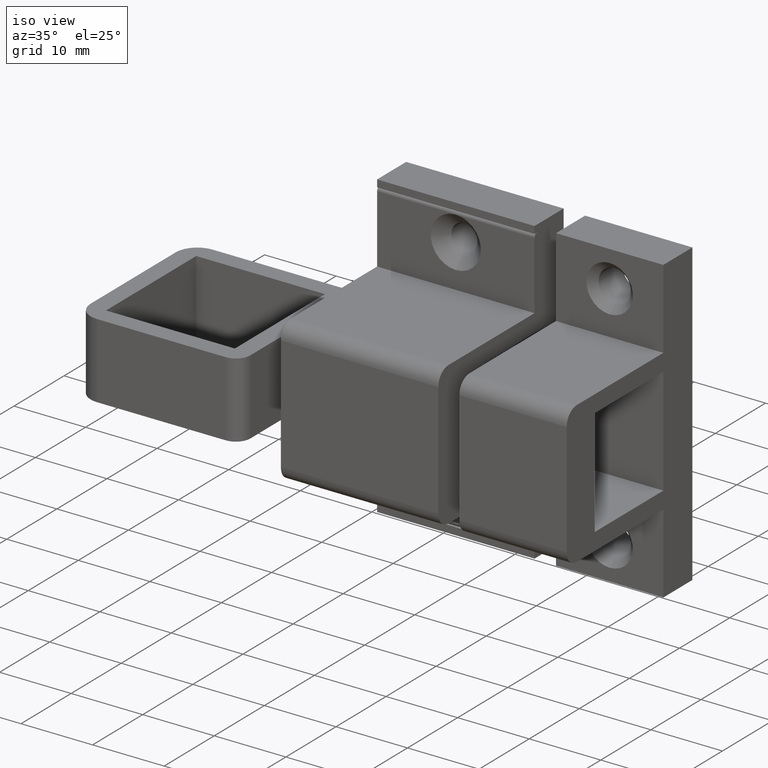
[diagram: clean part render]
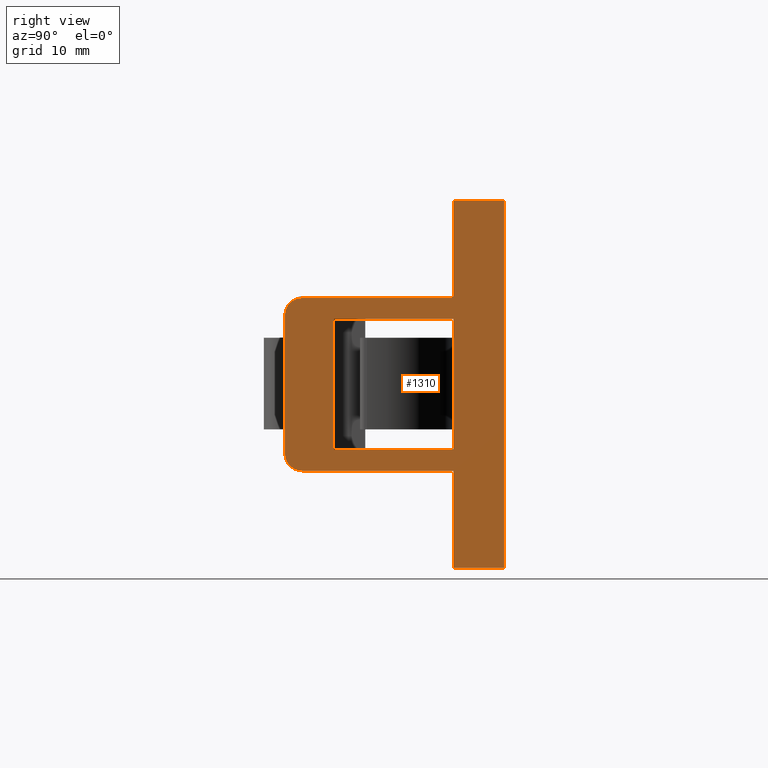
[diagram: tour spotlight — one face highlighted and labeled with its STEP entity id]
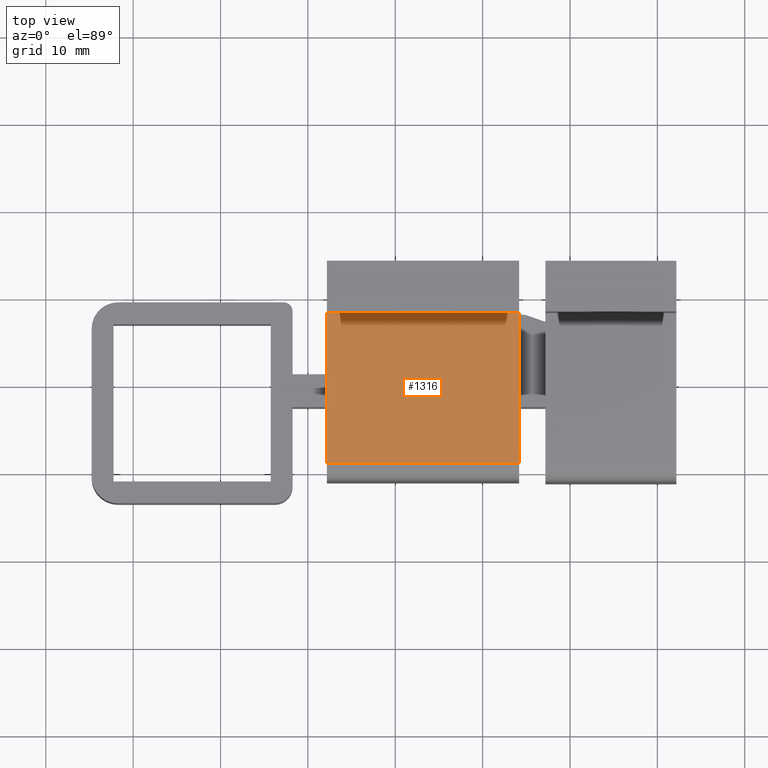
[diagram: tour spotlight — one face highlighted and labeled with its STEP entity id]
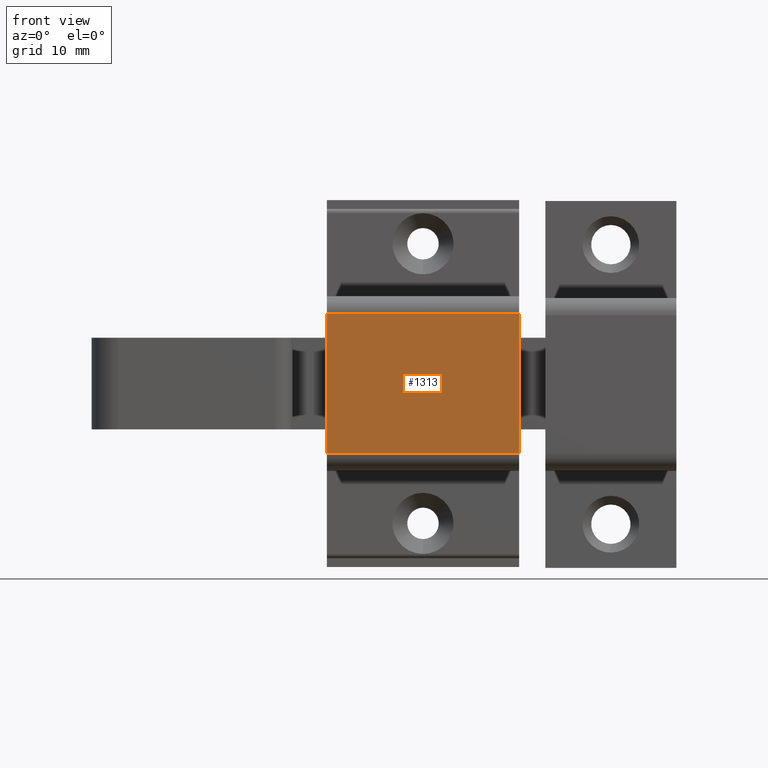
[diagram: tour spotlight — one face highlighted and labeled with its STEP entity id]
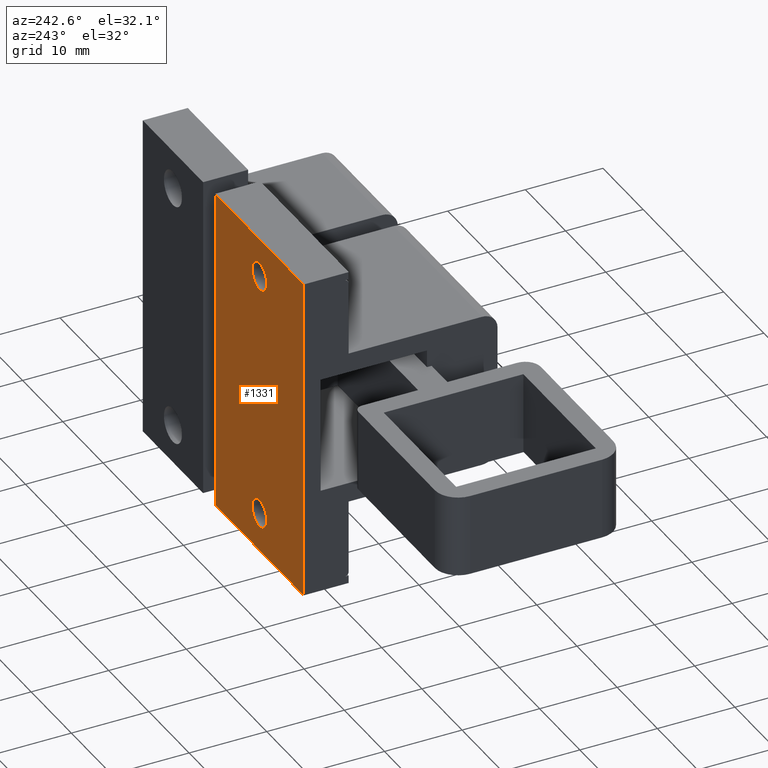
[diagram: tour spotlight — one face highlighted and labeled with its STEP entity id]
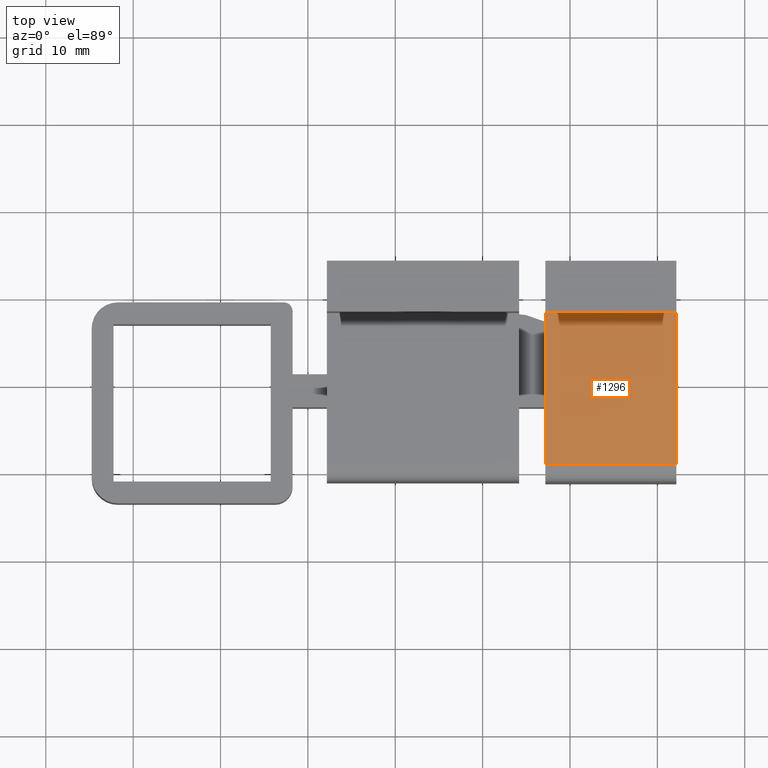
[diagram: tour spotlight — one face highlighted and labeled with its STEP entity id]
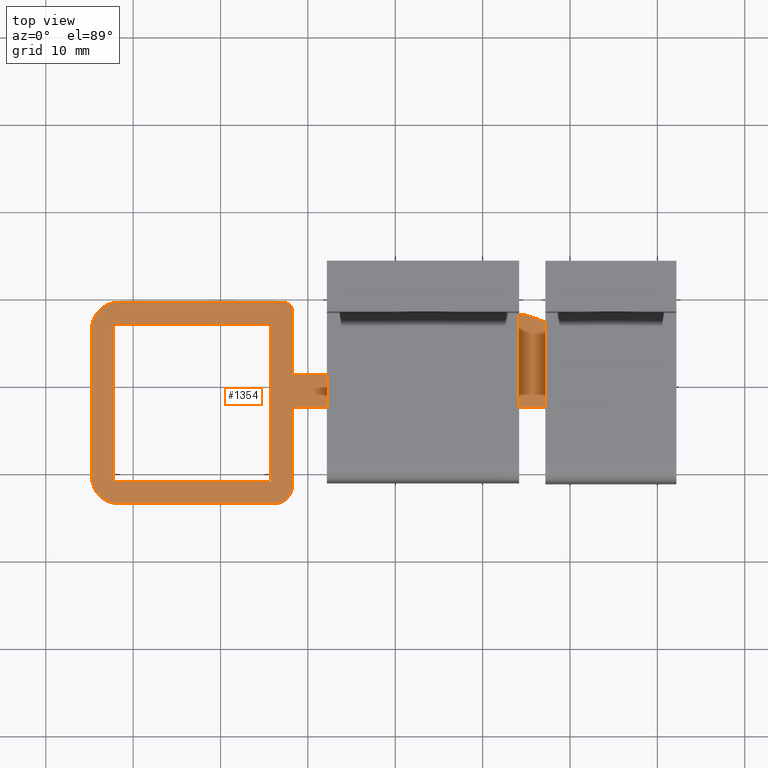
[diagram: tour spotlight — one face highlighted and labeled with its STEP entity id]
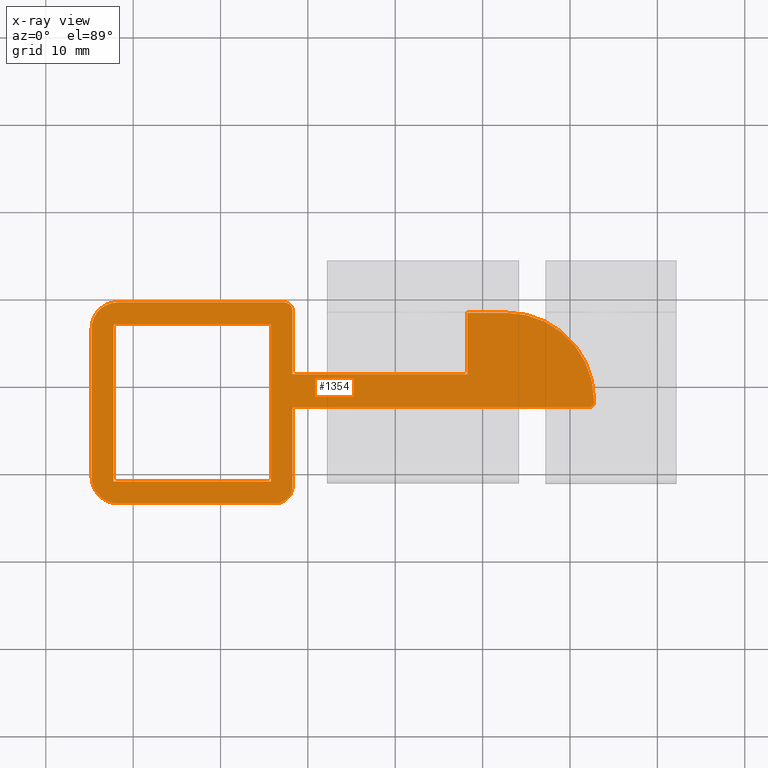
[diagram: x-ray of the same camera — body ghosted, this tour face saturated]
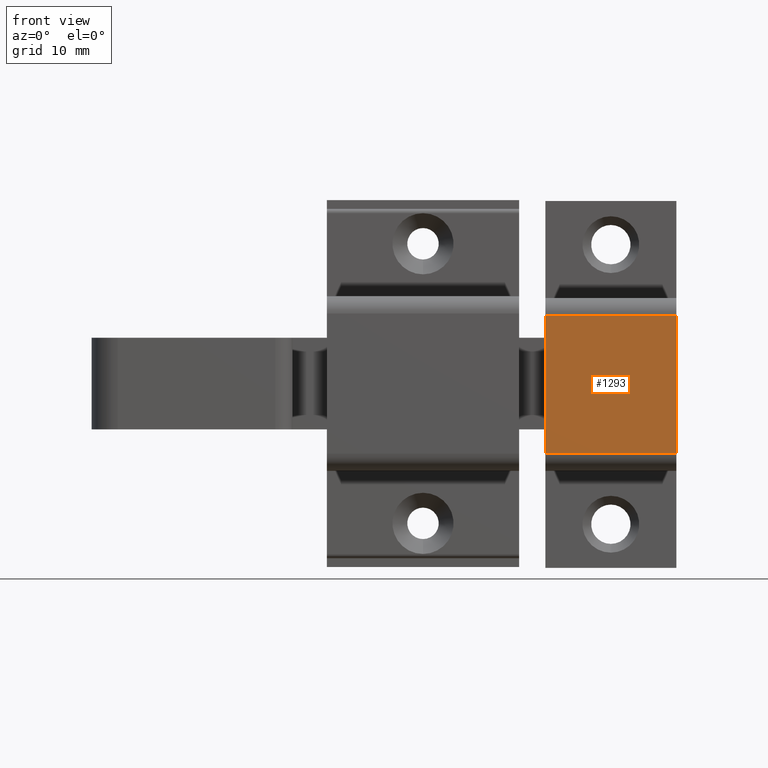
[diagram: tour spotlight — one face highlighted and labeled with its STEP entity id]
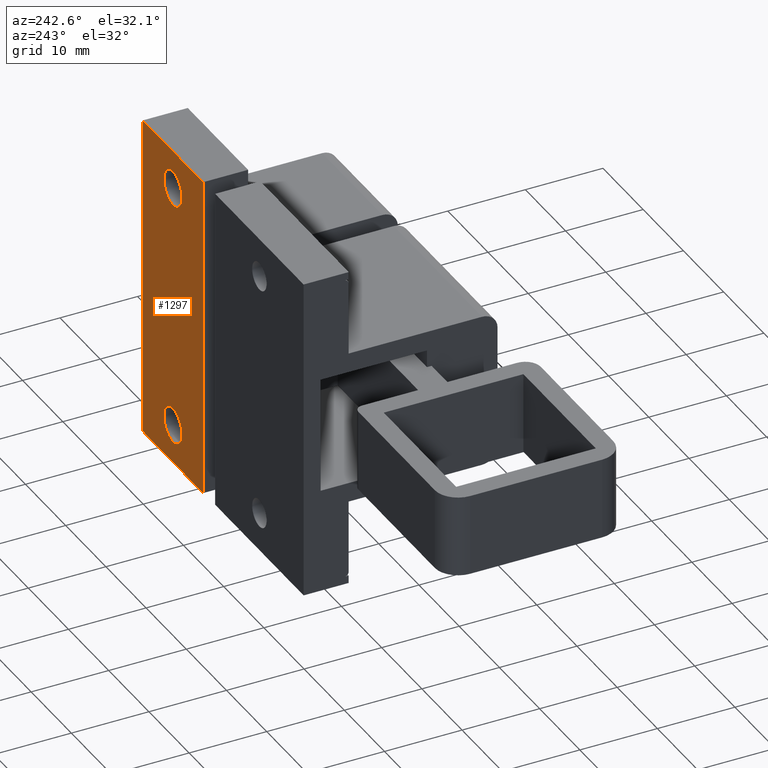
[diagram: tour spotlight — one face highlighted and labeled with its STEP entity id]
A machine part: a face-by-face anatomy tour. The part has 68 B-rep faces; the first image is the clean iso view, then the 8 largest visible faces are spotlighted one at a time (largest first), each with its STEP entity span.

Face 1 — right view, entity #1310. In plain terms, the highlighted planar face has unit normal (1, 0, 0).
Definition (entity closure, byte-faithful):
#44=FACE_BOUND('',#191,.T.);
#63=PLANE('',#1464);
#117=FACE_OUTER_BOUND('',#190,.T.);
#190=EDGE_LOOP('',(#992,#993,#994,#995,#996,#997,#998,#999,#1000,#1001));
#191=EDGE_LOOP('',(#1002,#1003,#1004,#1005));
#251=LINE('',#1942,#399);
#264=LINE('',#1973,#412);
#266=LINE('',#1978,#414);
#274=LINE('',#2012,#422);
#276=LINE('',#2016,#424);
#277=LINE('',#2018,#425);
#278=LINE('',#2021,#426);
#281=LINE('',#2027,#429);
#284=LINE('',#2032,#432);
#286=LINE('',#2036,#434);
#287=LINE('',#2038,#435);
#288=LINE('',#2040,#436);
#399=VECTOR('',#1562,10.);
#412=VECTOR('',#1585,15.3);
#414=VECTOR('',#1589,10.);
#422=VECTOR('',#1627,10.);
#424=VECTOR('',#1631,10.);
#425=VECTOR('',#1634,10.);
#426=VECTOR('',#1637,10.1);
#429=VECTOR('',#1642,13.7);
#432=VECTOR('',#1647,15.);
#434=VECTOR('',#1651,13.7);
#435=VECTOR('',#1654,15.);
#436=VECTOR('',#1657,15.3);
#544=CIRCLE('',#1434,2.);
#546=CIRCLE('',#1439,2.);
#586=VERTEX_POINT('',#1932);
#587=VERTEX_POINT('',#1934);
#589=VERTEX_POINT('',#1940);
#601=VERTEX_POINT('',#1968);
#602=VERTEX_POINT('',#1972);
#603=VERTEX_POINT('',#1976);
#604=VERTEX_POINT('',#1977);
#615=VERTEX_POINT('',#2010);
#616=VERTEX_POINT('',#2014);
#617=VERTEX_POINT('',#2020);
#618=VERTEX_POINT('',#2024);
#619=VERTEX_POINT('',#2026);
#620=VERTEX_POINT('',#2030);
#621=VERTEX_POINT('',#2034);
#711=EDGE_CURVE('',#586,#587,#544,.T.);
#715=EDGE_CURVE('',#586,#589,#251,.F.);
#729=EDGE_CURVE('',#601,#589,#546,.T.);
#730=EDGE_CURVE('',#602,#587,#264,.T.);
#732=EDGE_CURVE('',#603,#604,#266,.T.);
#750=EDGE_CURVE('',#615,#604,#274,.T.);
#752=EDGE_CURVE('',#616,#603,#276,.T.);
#753=EDGE_CURVE('',#602,#616,#277,.T.);
#754=EDGE_CURVE('',#617,#615,#278,.T.);
#757=EDGE_CURVE('',#619,#618,#281,.T.);
#760=EDGE_CURVE('',#618,#620,#284,.T.);
#762=EDGE_CURVE('',#620,#621,#286,.T.);
#763=EDGE_CURVE('',#621,#619,#287,.T.);
#764=EDGE_CURVE('',#601,#617,#288,.T.);
#992=ORIENTED_EDGE('',*,*,#711,.F.);
#993=ORIENTED_EDGE('',*,*,#715,.T.);
#994=ORIENTED_EDGE('',*,*,#729,.F.);
#995=ORIENTED_EDGE('',*,*,#764,.T.);
#996=ORIENTED_EDGE('',*,*,#754,.T.);
#997=ORIENTED_EDGE('',*,*,#750,.T.);
#998=ORIENTED_EDGE('',*,*,#732,.F.);
#999=ORIENTED_EDGE('',*,*,#752,.F.);
#1000=ORIENTED_EDGE('',*,*,#753,.F.);
#1001=ORIENTED_EDGE('',*,*,#730,.T.);
#1002=ORIENTED_EDGE('',*,*,#757,.T.);
#1003=ORIENTED_EDGE('',*,*,#760,.T.);
#1004=ORIENTED_EDGE('',*,*,#762,.T.);
#1005=ORIENTED_EDGE('',*,*,#763,.T.);
#1310=ADVANCED_FACE('',(#117,#44),#63,.T.);
#1434=AXIS2_PLACEMENT_3D('',#1935,#1555,#1556);
#1439=AXIS2_PLACEMENT_3D('',#1970,#1581,#1582);
#1464=AXIS2_PLACEMENT_3D('',#2039,#1655,#1656);
#1555=DIRECTION('center_axis',(0.,1.,0.));
#1556=DIRECTION('ref_axis',(0.707106781186548,0.,0.707106781186547));
#1562=DIRECTION('',(1.,0.,0.));
#1581=DIRECTION('center_axis',(0.,1.,0.));
#1582=DIRECTION('ref_axis',(-0.707106781186548,0.,0.707106781186547));
#1585=DIRECTION('',(0.,0.,1.));
#1589=DIRECTION('',(-1.,0.,0.));
#1627=DIRECTION('',(0.,0.,-1.));
#1631=DIRECTION('',(0.,-4.03717463500062E-15,-1.));
#1634=DIRECTION('',(1.,0.,0.));
#1637=DIRECTION('',(-1.,0.,0.));
#1642=DIRECTION('',(0.,0.,-1.));
#1647=DIRECTION('',(-1.,0.,0.));
#1651=DIRECTION('',(0.,0.,1.));
#1654=DIRECTION('',(1.,0.,0.));
#1655=DIRECTION('center_axis',(0.,-1.,0.));
#1656=DIRECTION('ref_axis',(1.,0.,0.));
#1657=DIRECTION('',(0.,0.,-1.));
#1932=CARTESIAN_POINT('',(7.89999999999998,-10.5,21.5));
#1934=CARTESIAN_POINT('',(9.89999999999998,-10.5,19.5));
#1935=CARTESIAN_POINT('Origin',(7.89999999999998,-10.5,19.5));
#1940=CARTESIAN_POINT('',(-7.90000000000002,-10.5,21.5));
#1942=CARTESIAN_POINT('',(-7.05000095780639,-10.5,21.5));
#1968=CARTESIAN_POINT('',(-9.90000000000002,-10.5,19.5));
#1970=CARTESIAN_POINT('Origin',(-7.90000000000002,-10.5,19.5));
#1972=CARTESIAN_POINT('',(9.89999999999998,-10.5,2.19999999999997));
#1973=CARTESIAN_POINT('',(9.89999999999998,-10.5,2.19999999999997));
#1976=CARTESIAN_POINT('',(21.,-10.5,-3.6));
#1977=CARTESIAN_POINT('',(-21.,-10.5,-3.6));
#1978=CARTESIAN_POINT('',(21.,-10.5,-3.6));
#2010=CARTESIAN_POINT('',(-21.,-10.5,2.19999999999997));
#2012=CARTESIAN_POINT('',(-21.,-10.5,-3.552714E-15));
#2014=CARTESIAN_POINT('',(21.,-10.5,2.19999999999997));
#2016=CARTESIAN_POINT('',(21.,-10.5,2.19999999999997));
#2018=CARTESIAN_POINT('',(20.,-10.5,2.19999999999997));
#2020=CARTESIAN_POINT('',(-9.90000000000001,-10.5,2.19999999999997));
#2021=CARTESIAN_POINT('',(-9.90000000000001,-10.5,2.19999999999997));
#2024=CARTESIAN_POINT('',(7.49999999999996,-10.5,2.19999999999997));
#2026=CARTESIAN_POINT('',(7.49999999999997,-10.5,15.9));
#2027=CARTESIAN_POINT('',(7.49999999999997,-10.5,15.9));
#2030=CARTESIAN_POINT('',(-7.50000000000001,-10.5,2.19999999999997));
#2032=CARTESIAN_POINT('',(7.49999999999996,-10.5,2.19999999999997));
#2034=CARTESIAN_POINT('',(-7.50000000000001,-10.5,15.9));
#2036=CARTESIAN_POINT('',(-7.50000000000001,-10.5,2.19999999999997));
#2038=CARTESIAN_POINT('',(-7.50000000000001,-10.5,15.9));
#2039=CARTESIAN_POINT('Origin',(-24.0000019156128,-10.5,-1.95000184695482));
#2040=CARTESIAN_POINT('',(-9.90000000000002,-10.5,17.5));

Face 2 — top view, entity #1316. In plain terms, the highlighted planar face has unit normal (-0, -0, 1).
Definition (entity closure, byte-faithful):
#67=PLANE('',#1477);
#123=FACE_OUTER_BOUND('',#198,.T.);
#198=EDGE_LOOP('',(#1042,#1043,#1044,#1045));
#304=LINE('',#2084,#452);
#309=LINE('',#2097,#457);
#310=LINE('',#2100,#458);
#311=LINE('',#2101,#459);
#452=VECTOR('',#1691,11.7);
#457=VECTOR('',#1702,10.);
#458=VECTOR('',#1705,22.);
#459=VECTOR('',#1706,11.7);
#639=VERTEX_POINT('',#2081);
#640=VERTEX_POINT('',#2083);
#645=VERTEX_POINT('',#2095);
#646=VERTEX_POINT('',#2099);
#784=EDGE_CURVE('',#640,#639,#304,.T.);
#791=EDGE_CURVE('',#640,#645,#309,.T.);
#792=EDGE_CURVE('',#639,#646,#310,.T.);
#793=EDGE_CURVE('',#645,#646,#311,.T.);
#1042=ORIENTED_EDGE('',*,*,#791,.F.);
#1043=ORIENTED_EDGE('',*,*,#784,.T.);
#1044=ORIENTED_EDGE('',*,*,#792,.T.);
#1045=ORIENTED_EDGE('',*,*,#793,.F.);
#1316=ADVANCED_FACE('',(#123),#67,.T.);
#1477=AXIS2_PLACEMENT_3D('',#2098,#1703,#1704);
#1691=DIRECTION('',(0.,0.,-1.));
#1702=DIRECTION('',(0.,1.,0.));
#1703=DIRECTION('center_axis',(1.,0.,0.));
#1704=DIRECTION('ref_axis',(0.,0.,-1.));
#1705=DIRECTION('',(0.,1.,0.));
#1706=DIRECTION('',(0.,0.,-1.));
#2081=CARTESIAN_POINT('',(10.,0.,5.8));
#2083=CARTESIAN_POINT('',(10.,-3.675178E-15,23.));
#2084=CARTESIAN_POINT('',(10.,-3.675178E-15,17.5));
#2095=CARTESIAN_POINT('',(10.,22.,23.));
#2097=CARTESIAN_POINT('',(10.,-3.552714E-15,23.));
#2098=CARTESIAN_POINT('Origin',(10.,-3.552714E-15,19.5));
#2099=CARTESIAN_POINT('',(10.,22.,5.8));
#2100=CARTESIAN_POINT('',(10.,0.,5.8));
#2101=CARTESIAN_POINT('',(10.,22.,17.5));

Face 3 — front view, entity #1313. In plain terms, the highlighted planar face has unit normal (0, -1, -0).
Definition (entity closure, byte-faithful):
#65=PLANE('',#1470);
#120=FACE_OUTER_BOUND('',#194,.T.);
#194=EDGE_LOOP('',(#1014,#1015,#1016,#1017));
#289=LINE('',#2048,#437);
#291=LINE('',#2054,#439);
#292=LINE('',#2056,#440);
#293=LINE('',#2057,#441);
#437=VECTOR('',#1666,10.);
#439=VECTOR('',#1672,16.);
#440=VECTOR('',#1673,10.);
#441=VECTOR('',#1674,16.);
#623=VERTEX_POINT('',#2045);
#624=VERTEX_POINT('',#2047);
#626=VERTEX_POINT('',#2053);
#627=VERTEX_POINT('',#2055);
#766=EDGE_CURVE('',#623,#624,#289,.T.);
#769=EDGE_CURVE('',#623,#626,#291,.T.);
#770=EDGE_CURVE('',#627,#626,#292,.T.);
#771=EDGE_CURVE('',#624,#627,#293,.T.);
#1014=ORIENTED_EDGE('',*,*,#766,.F.);
#1015=ORIENTED_EDGE('',*,*,#769,.T.);
#1016=ORIENTED_EDGE('',*,*,#770,.F.);
#1017=ORIENTED_EDGE('',*,*,#771,.F.);
#1313=ADVANCED_FACE('',(#120),#65,.T.);
#1470=AXIS2_PLACEMENT_3D('',#2052,#1670,#1671);
#1666=DIRECTION('',(0.,1.,0.));
#1670=DIRECTION('center_axis',(0.,0.,1.));
#1671=DIRECTION('ref_axis',(1.,0.,0.));
#1672=DIRECTION('',(1.,0.,0.));
#1673=DIRECTION('',(0.,-1.,0.));
#1674=DIRECTION('',(1.,0.,0.));
#2045=CARTESIAN_POINT('',(-8.,-3.552714E-15,25.));
#2047=CARTESIAN_POINT('',(-8.,22.,25.));
#2048=CARTESIAN_POINT('',(-8.,-1.776357E-15,25.));
#2052=CARTESIAN_POINT('Origin',(-10.,-3.552714E-15,25.));
#2053=CARTESIAN_POINT('',(8.,-3.552714E-15,25.));
#2054=CARTESIAN_POINT('',(-8.,-3.552714E-15,25.));
#2055=CARTESIAN_POINT('',(8.,22.,25.));
#2056=CARTESIAN_POINT('',(8.,-3.552714E-15,25.));
#2057=CARTESIAN_POINT('',(-8.,22.,25.));

Face 4 — auxiliary view, entity #1331. In plain terms, the highlighted planar face has unit normal (-0, 1, 0).
Definition (entity closure, byte-faithful):
#47=FACE_BOUND('',#215,.T.);
#48=FACE_BOUND('',#216,.T.);
#78=PLANE('',#1501);
#138=FACE_OUTER_BOUND('',#214,.T.);
#214=EDGE_LOOP('',(#1124,#1125,#1126,#1127));
#215=EDGE_LOOP('',(#1128));
#216=EDGE_LOOP('',(#1129));
#299=LINE('',#2072,#447);
#318=LINE('',#2118,#466);
#329=LINE('',#2140,#477);
#333=LINE('',#2147,#481);
#447=VECTOR('',#1684,40.);
#466=VECTOR('',#1719,40.);
#477=VECTOR('',#1736,10.);
#481=VECTOR('',#1746,10.);
#568=CIRCLE('',#1494,1.8);
#571=CIRCLE('',#1500,1.8);
#633=VERTEX_POINT('',#2069);
#634=VERTEX_POINT('',#2071);
#652=VERTEX_POINT('',#2115);
#653=VERTEX_POINT('',#2117);
#665=VERTEX_POINT('',#2162);
#668=VERTEX_POINT('',#2175);
#778=EDGE_CURVE('',#634,#633,#299,.T.);
#801=EDGE_CURVE('',#652,#653,#318,.T.);
#813=EDGE_CURVE('',#653,#633,#329,.T.);
#817=EDGE_CURVE('',#634,#652,#333,.T.);
#825=EDGE_CURVE('',#665,#665,#568,.T.);
#832=EDGE_CURVE('',#668,#668,#571,.T.);
#1124=ORIENTED_EDGE('',*,*,#778,.T.);
#1125=ORIENTED_EDGE('',*,*,#813,.F.);
#1126=ORIENTED_EDGE('',*,*,#801,.F.);
#1127=ORIENTED_EDGE('',*,*,#817,.F.);
#1128=ORIENTED_EDGE('',*,*,#832,.T.);
#1129=ORIENTED_EDGE('',*,*,#825,.T.);
#1331=ADVANCED_FACE('',(#138,#47,#48),#78,.T.);
#1494=AXIS2_PLACEMENT_3D('',#2163,#1765,#1766);
#1500=AXIS2_PLACEMENT_3D('',#2176,#1781,#1782);
#1501=AXIS2_PLACEMENT_3D('',#2178,#1784,#1785);
#1684=DIRECTION('',(-1.,0.,0.));
#1719=DIRECTION('',(-1.,0.,0.));
#1736=DIRECTION('',(0.,-1.,0.));
#1746=DIRECTION('',(0.,1.,0.));
#1765=DIRECTION('center_axis',(0.,0.,1.));
#1766=DIRECTION('ref_axis',(1.,0.,0.));
#1781=DIRECTION('center_axis',(0.,0.,1.));
#1782=DIRECTION('ref_axis',(1.,0.,0.));
#1784=DIRECTION('center_axis',(0.,0.,-1.));
#1785=DIRECTION('ref_axis',(-1.,0.,0.));
#2069=CARTESIAN_POINT('',(-21.,3.552714E-15,-3.33066907387547E-15));
#2071=CARTESIAN_POINT('',(21.,0.,3.552714E-15));
#2072=CARTESIAN_POINT('',(20.,0.,3.552714E-15));
#2115=CARTESIAN_POINT('',(21.,22.,3.552714E-15));
#2117=CARTESIAN_POINT('',(-21.,22.,-3.33066907387547E-15));
#2118=CARTESIAN_POINT('',(20.,22.,3.552714E-15));
#2140=CARTESIAN_POINT('',(-21.,22.,-3.33066907387547E-15));
#2147=CARTESIAN_POINT('',(21.,0.,3.552714E-15));
#2162=CARTESIAN_POINT('',(14.2,11.,3.33066907387547E-15));
#2163=CARTESIAN_POINT('Origin',(16.,11.,3.33066907387547E-15));
#2175=CARTESIAN_POINT('',(-17.8,11.,3.33066907387547E-15));
#2176=CARTESIAN_POINT('Origin',(-16.,11.,3.33066907387547E-15));
#2178=CARTESIAN_POINT('Origin',(20.,0.,3.552714E-15));

Face 5 — top view, entity #1296. In plain terms, the highlighted planar face has unit normal (-0, -0, 1).
Definition (entity closure, byte-faithful):
#53=PLANE('',#1440);
#103=FACE_OUTER_BOUND('',#172,.T.);
#172=EDGE_LOOP('',(#924,#925,#926,#927));
#248=LINE('',#1936,#396);
#252=LINE('',#1945,#400);
#264=LINE('',#1973,#412);
#265=LINE('',#1974,#413);
#396=VECTOR('',#1557,10.);
#400=VECTOR('',#1565,10.);
#412=VECTOR('',#1585,15.3);
#413=VECTOR('',#1586,9.99999999999999);
#584=VERTEX_POINT('',#1929);
#587=VERTEX_POINT('',#1934);
#590=VERTEX_POINT('',#1944);
#602=VERTEX_POINT('',#1972);
#712=EDGE_CURVE('',#587,#584,#248,.T.);
#716=EDGE_CURVE('',#584,#590,#252,.T.);
#730=EDGE_CURVE('',#602,#587,#264,.T.);
#731=EDGE_CURVE('',#590,#602,#265,.T.);
#924=ORIENTED_EDGE('',*,*,#712,.F.);
#925=ORIENTED_EDGE('',*,*,#730,.F.);
#926=ORIENTED_EDGE('',*,*,#731,.F.);
#927=ORIENTED_EDGE('',*,*,#716,.F.);
#1296=ADVANCED_FACE('',(#103),#53,.T.);
#1440=AXIS2_PLACEMENT_3D('',#1971,#1583,#1584);
#1557=DIRECTION('',(0.,1.,0.));
#1565=DIRECTION('',(-1.12618685522917E-16,0.,-1.));
#1583=DIRECTION('center_axis',(1.,0.,0.));
#1584=DIRECTION('ref_axis',(0.,0.,1.));
#1585=DIRECTION('',(0.,0.,1.));
#1586=DIRECTION('',(0.,-1.,0.));
#1929=CARTESIAN_POINT('',(9.89999999999998,4.5,19.5));
#1934=CARTESIAN_POINT('',(9.89999999999998,-10.5,19.5));
#1936=CARTESIAN_POINT('',(9.89999999999998,-0.500000000000006,19.5));
#1944=CARTESIAN_POINT('',(9.89999999999998,4.5,2.19999999999998));
#1945=CARTESIAN_POINT('',(9.89999999999998,4.5,17.5));
#1971=CARTESIAN_POINT('Origin',(9.89999999999998,-0.500000000000004,2.19999999999998));
#1972=CARTESIAN_POINT('',(9.89999999999998,-10.5,2.19999999999997));
#1973=CARTESIAN_POINT('',(9.89999999999998,-10.5,2.19999999999997));
#1974=CARTESIAN_POINT('',(9.89999999999998,-0.500000000000004,2.19999999999998));

Face 6 — top view, entity #1354. An x-ray twin of the same camera follows (body ghosted, this face saturated) — the face is partly hidden behind the body. In plain terms, the highlighted planar face has unit normal (-0, -0, 1).
Definition (entity closure, byte-faithful):
#50=FACE_BOUND('',#241,.T.);
#93=PLANE('',#1537);
#161=FACE_OUTER_BOUND('',#240,.T.);
#240=EDGE_LOOP('',(#1236,#1237,#1238,#1239,#1240,#1241,#1242,#1243,#1244,
#1245,#1246,#1247,#1248,#1249,#1250,#1251));
#241=EDGE_LOOP('',(#1252,#1253,#1254,#1255));
#349=LINE('',#2197,#497);
#353=LINE('',#2204,#501);
#356=LINE('',#2210,#504);
#358=LINE('',#2213,#506);
#365=LINE('',#2242,#513);
#367=LINE('',#2245,#515);
#371=LINE('',#2257,#519);
#375=LINE('',#2264,#523);
#380=LINE('',#2279,#528);
#388=LINE('',#2298,#536);
#389=LINE('',#2299,#537);
#390=LINE('',#2301,#538);
#391=LINE('',#2303,#539);
#392=LINE('',#2304,#540);
#497=VECTOR('',#1808,18.);
#501=VECTOR('',#1814,18.);
#504=VECTOR('',#1819,18.);
#506=VECTOR('',#1823,18.);
#513=VECTOR('',#1850,17.);
#515=VECTOR('',#1854,18.);
#519=VECTOR('',#1866,19.);
#523=VECTOR('',#1872,9.);
#528=VECTOR('',#1885,4.49999999999999);
#536=VECTOR('',#1903,34.);
#537=VECTOR('',#1904,0.299999999999997);
#538=VECTOR('',#1905,7.02929062203731);
#539=VECTOR('',#1906,20.);
#540=VECTOR('',#1907,7.2292906220373);
#572=CIRCLE('',#1514,2.);
#574=CIRCLE('',#1517,3.);
#577=CIRCLE('',#1521,3.);
#578=CIRCLE('',#1525,1.);
#581=CIRCLE('',#1531,10.);
#583=CIRCLE('',#1536,0.5);
#671=VERTEX_POINT('',#2194);
#672=VERTEX_POINT('',#2196);
#674=VERTEX_POINT('',#2202);
#676=VERTEX_POINT('',#2208);
#678=VERTEX_POINT('',#2216);
#679=VERTEX_POINT('',#2218);
#682=VERTEX_POINT('',#2225);
#683=VERTEX_POINT('',#2227);
#687=VERTEX_POINT('',#2236);
#688=VERTEX_POINT('',#2238);
#690=VERTEX_POINT('',#2249);
#691=VERTEX_POINT('',#2251);
#694=VERTEX_POINT('',#2262);
#697=VERTEX_POINT('',#2269);
#698=VERTEX_POINT('',#2271);
#700=VERTEX_POINT('',#2277);
#705=VERTEX_POINT('',#2292);
#706=VERTEX_POINT('',#2294);
#707=VERTEX_POINT('',#2300);
#708=VERTEX_POINT('',#2302);
#840=EDGE_CURVE('',#672,#671,#349,.T.);
#844=EDGE_CURVE('',#671,#674,#353,.T.);
#847=EDGE_CURVE('',#674,#676,#356,.T.);
#849=EDGE_CURVE('',#676,#672,#358,.T.);
#851=EDGE_CURVE('',#678,#679,#572,.T.);
#855=EDGE_CURVE('',#682,#683,#574,.T.);
#860=EDGE_CURVE('',#688,#687,#577,.T.);
#862=EDGE_CURVE('',#682,#688,#365,.T.);
#864=EDGE_CURVE('',#687,#679,#367,.T.);
#867=EDGE_CURVE('',#691,#690,#578,.T.);
#870=EDGE_CURVE('',#690,#683,#371,.T.);
#874=EDGE_CURVE('',#678,#694,#375,.T.);
#877=EDGE_CURVE('',#698,#697,#581,.T.);
#881=EDGE_CURVE('',#700,#697,#380,.T.);
#890=EDGE_CURVE('',#705,#706,#583,.T.);
#891=EDGE_CURVE('',#694,#705,#388,.T.);
#892=EDGE_CURVE('',#698,#706,#389,.T.);
#893=EDGE_CURVE('',#707,#700,#390,.T.);
#894=EDGE_CURVE('',#708,#707,#391,.T.);
#895=EDGE_CURVE('',#708,#691,#392,.T.);
#1236=ORIENTED_EDGE('',*,*,#862,.T.);
#1237=ORIENTED_EDGE('',*,*,#860,.T.);
#1238=ORIENTED_EDGE('',*,*,#864,.T.);
#1239=ORIENTED_EDGE('',*,*,#851,.F.);
#1240=ORIENTED_EDGE('',*,*,#874,.T.);
#1241=ORIENTED_EDGE('',*,*,#891,.T.);
#1242=ORIENTED_EDGE('',*,*,#890,.T.);
#1243=ORIENTED_EDGE('',*,*,#892,.F.);
#1244=ORIENTED_EDGE('',*,*,#877,.T.);
#1245=ORIENTED_EDGE('',*,*,#881,.F.);
#1246=ORIENTED_EDGE('',*,*,#893,.F.);
#1247=ORIENTED_EDGE('',*,*,#894,.F.);
#1248=ORIENTED_EDGE('',*,*,#895,.T.);
#1249=ORIENTED_EDGE('',*,*,#867,.T.);
#1250=ORIENTED_EDGE('',*,*,#870,.T.);
#1251=ORIENTED_EDGE('',*,*,#855,.F.);
#1252=ORIENTED_EDGE('',*,*,#840,.T.);
#1253=ORIENTED_EDGE('',*,*,#844,.T.);
#1254=ORIENTED_EDGE('',*,*,#847,.T.);
#1255=ORIENTED_EDGE('',*,*,#849,.T.);
#1354=ADVANCED_FACE('',(#161,#50),#93,.T.);
#1514=AXIS2_PLACEMENT_3D('',#2219,#1827,#1828);
#1517=AXIS2_PLACEMENT_3D('',#2228,#1835,#1836);
#1521=AXIS2_PLACEMENT_3D('',#2239,#1845,#1846);
#1525=AXIS2_PLACEMENT_3D('',#2252,#1859,#1860);
#1531=AXIS2_PLACEMENT_3D('',#2272,#1878,#1879);
#1536=AXIS2_PLACEMENT_3D('',#2296,#1899,#1900);
#1537=AXIS2_PLACEMENT_3D('',#2297,#1901,#1902);
#1808=DIRECTION('',(0.,0.,-1.));
#1814=DIRECTION('',(0.,-1.,0.));
#1819=DIRECTION('',(0.,0.,1.));
#1823=DIRECTION('',(0.,1.,0.));
#1827=DIRECTION('center_axis',(-1.,0.,0.));
#1828=DIRECTION('ref_axis',(0.,-1.,0.));
#1835=DIRECTION('center_axis',(-1.,0.,0.));
#1836=DIRECTION('ref_axis',(0.,1.,0.));
#1845=DIRECTION('center_axis',(1.,0.,0.));
#1846=DIRECTION('ref_axis',(0.,1.,0.));
#1850=DIRECTION('',(0.,0.,1.));
#1854=DIRECTION('',(0.,-1.,0.));
#1859=DIRECTION('center_axis',(1.,0.,0.));
#1860=DIRECTION('ref_axis',(0.,-1.,0.));
#1866=DIRECTION('',(0.,1.,0.));
#1872=DIRECTION('',(0.,0.,-1.));
#1878=DIRECTION('center_axis',(1.,0.,0.));
#1879=DIRECTION('ref_axis',(0.,-1.,-7.105427E-16));
#1885=DIRECTION('',(0.,-1.,0.));
#1899=DIRECTION('center_axis',(1.,0.,0.));
#1900=DIRECTION('ref_axis',(0.,0.,1.));
#1901=DIRECTION('center_axis',(1.,0.,0.));
#1902=DIRECTION('ref_axis',(0.,1.,0.));
#1903=DIRECTION('',(0.,-1.,0.));
#1904=DIRECTION('',(0.,0.,1.));
#1905=DIRECTION('',(0.,0.,-1.));
#1906=DIRECTION('',(0.,-1.,0.));
#1907=DIRECTION('',(0.,0.,-1.));
#2194=CARTESIAN_POINT('',(5.25,43.,3.50000000000001));
#2196=CARTESIAN_POINT('',(5.25,43.,21.5));
#2197=CARTESIAN_POINT('',(5.25,43.,21.5));
#2202=CARTESIAN_POINT('',(5.25,25.,3.5));
#2204=CARTESIAN_POINT('',(5.25,43.,3.50000000000001));
#2208=CARTESIAN_POINT('',(5.25,25.,21.5));
#2210=CARTESIAN_POINT('',(5.25,25.,3.5));
#2213=CARTESIAN_POINT('',(5.25,25.,21.5));
#2216=CARTESIAN_POINT('',(5.25,22.5,22.));
#2218=CARTESIAN_POINT('',(5.25,24.5,24.));
#2219=CARTESIAN_POINT('Origin',(5.25,24.5,22.));
#2225=CARTESIAN_POINT('',(5.25,45.5,4.00000000000001));
#2227=CARTESIAN_POINT('',(5.25,42.5,1.00000000000001));
#2228=CARTESIAN_POINT('Origin',(5.25,42.5,4.00000000000001));
#2236=CARTESIAN_POINT('',(5.25,42.5,24.));
#2238=CARTESIAN_POINT('',(5.25,45.5,21.));
#2239=CARTESIAN_POINT('Origin',(5.25,42.5,21.));
#2242=CARTESIAN_POINT('',(5.25,45.5,4.00000000000001));
#2245=CARTESIAN_POINT('',(5.25,42.5,24.));
#2249=CARTESIAN_POINT('',(5.25,23.5,0.999999999999996));
#2251=CARTESIAN_POINT('',(5.25,22.5,2.));
#2252=CARTESIAN_POINT('Origin',(5.25,23.5,2.));
#2257=CARTESIAN_POINT('',(5.25,23.5,0.999999999999997));
#2262=CARTESIAN_POINT('',(5.25,22.5,13.));
#2264=CARTESIAN_POINT('',(5.25,22.5,22.));
#2269=CARTESIAN_POINT('',(5.25,-2.,2.19999999999997));
#2271=CARTESIAN_POINT('',(5.25,-12.,12.2));
#2272=CARTESIAN_POINT('Origin',(5.25,-2.,12.2));
#2277=CARTESIAN_POINT('',(5.25,2.5,2.19999999999998));
#2279=CARTESIAN_POINT('',(5.25,2.5,2.19999999999998));
#2292=CARTESIAN_POINT('',(5.25,-11.5,13.));
#2294=CARTESIAN_POINT('',(5.25,-12.,12.5));
#2296=CARTESIAN_POINT('Origin',(5.25,-11.5,12.5));
#2297=CARTESIAN_POINT('Origin',(5.25,-12.0000159608783,0.999982443033861));
#2298=CARTESIAN_POINT('',(5.25,22.5,13.));
#2299=CARTESIAN_POINT('',(5.25,-12.,12.2));
#2300=CARTESIAN_POINT('',(5.25,2.49999999999999,9.22929062203729));
#2301=CARTESIAN_POINT('',(5.25,2.49999999999999,9.22929062203729));
#2302=CARTESIAN_POINT('',(5.25,22.5,9.2292906220373));
#2303=CARTESIAN_POINT('',(5.25,22.5,9.2292906220373));
#2304=CARTESIAN_POINT('',(5.25,22.5,9.2292906220373));

Face 7 — front view, entity #1293. In plain terms, the highlighted planar face has unit normal (0, -1, -0).
Definition (entity closure, byte-faithful):
#51=PLANE('',#1435);
#100=FACE_OUTER_BOUND('',#168,.T.);
#168=EDGE_LOOP('',(#902,#903,#904,#905));
#247=LINE('',#1933,#395);
#249=LINE('',#1939,#397);
#250=LINE('',#1941,#398);
#251=LINE('',#1942,#399);
#395=VECTOR('',#1554,10.);
#397=VECTOR('',#1560,10.);
#398=VECTOR('',#1561,10.);
#399=VECTOR('',#1562,10.);
#585=VERTEX_POINT('',#1930);
#586=VERTEX_POINT('',#1932);
#588=VERTEX_POINT('',#1938);
#589=VERTEX_POINT('',#1940);
#710=EDGE_CURVE('',#585,#586,#247,.T.);
#713=EDGE_CURVE('',#588,#585,#249,.F.);
#714=EDGE_CURVE('',#589,#588,#250,.T.);
#715=EDGE_CURVE('',#586,#589,#251,.F.);
#902=ORIENTED_EDGE('',*,*,#710,.F.);
#903=ORIENTED_EDGE('',*,*,#713,.F.);
#904=ORIENTED_EDGE('',*,*,#714,.F.);
#905=ORIENTED_EDGE('',*,*,#715,.F.);
#1293=ADVANCED_FACE('',(#100),#51,.T.);
#1435=AXIS2_PLACEMENT_3D('',#1937,#1558,#1559);
#1554=DIRECTION('',(0.,-1.,0.));
#1558=DIRECTION('center_axis',(0.,0.,1.));
#1559=DIRECTION('ref_axis',(-1.,0.,0.));
#1560=DIRECTION('',(-1.,0.,0.));
#1561=DIRECTION('',(0.,1.,0.));
#1562=DIRECTION('',(1.,0.,0.));
#1930=CARTESIAN_POINT('',(7.89999999999998,4.5,21.5));
#1932=CARTESIAN_POINT('',(7.89999999999998,-10.5,21.5));
#1933=CARTESIAN_POINT('',(7.89999999999998,-0.500000000000006,21.5));
#1937=CARTESIAN_POINT('Origin',(9.89999999999998,-0.500000000000007,21.5));
#1938=CARTESIAN_POINT('',(-7.90000000000002,4.5,21.5));
#1939=CARTESIAN_POINT('',(4.94999999999998,4.5,21.5));
#1940=CARTESIAN_POINT('',(-7.90000000000002,-10.5,21.5));
#1941=CARTESIAN_POINT('',(-7.90000000000002,-0.500000000000007,21.5));
#1942=CARTESIAN_POINT('',(-7.05000095780639,-10.5,21.5));

Face 8 — auxiliary view, entity #1297. In plain terms, the highlighted planar face has unit normal (-0, 1, 0).
Definition (entity closure, byte-faithful):
#40=FACE_BOUND('',#174,.T.);
#41=FACE_BOUND('',#175,.T.);
#54=PLANE('',#1441);
#104=FACE_OUTER_BOUND('',#173,.T.);
#173=EDGE_LOOP('',(#928,#929,#930,#931));
#174=EDGE_LOOP('',(#932));
#175=EDGE_LOOP('',(#933));
#255=LINE('',#1951,#403);
#266=LINE('',#1978,#414);
#267=LINE('',#1979,#415);
#268=LINE('',#1980,#416);
#403=VECTOR('',#1568,10.);
#414=VECTOR('',#1589,10.);
#415=VECTOR('',#1590,10.);
#416=VECTOR('',#1591,10.);
#547=CIRCLE('',#1442,2.25);
#548=CIRCLE('',#1443,2.25);
#592=VERTEX_POINT('',#1948);
#593=VERTEX_POINT('',#1950);
#603=VERTEX_POINT('',#1976);
#604=VERTEX_POINT('',#1977);
#605=VERTEX_POINT('',#1981);
#606=VERTEX_POINT('',#1983);
#719=EDGE_CURVE('',#593,#592,#255,.T.);
#732=EDGE_CURVE('',#603,#604,#266,.T.);
#733=EDGE_CURVE('',#604,#593,#267,.T.);
#734=EDGE_CURVE('',#592,#603,#268,.T.);
#735=EDGE_CURVE('',#605,#605,#547,.T.);
#736=EDGE_CURVE('',#606,#606,#548,.T.);
#928=ORIENTED_EDGE('',*,*,#732,.T.);
#929=ORIENTED_EDGE('',*,*,#733,.T.);
#930=ORIENTED_EDGE('',*,*,#719,.T.);
#931=ORIENTED_EDGE('',*,*,#734,.T.);
#932=ORIENTED_EDGE('',*,*,#735,.T.);
#933=ORIENTED_EDGE('',*,*,#736,.T.);
#1297=ADVANCED_FACE('',(#104,#40,#41),#54,.T.);
#1441=AXIS2_PLACEMENT_3D('',#1975,#1587,#1588);
#1442=AXIS2_PLACEMENT_3D('',#1982,#1592,#1593);
#1443=AXIS2_PLACEMENT_3D('',#1984,#1594,#1595);
#1568=DIRECTION('',(1.,0.,0.));
#1587=DIRECTION('center_axis',(0.,0.,-1.));
#1588=DIRECTION('ref_axis',(-1.,0.,0.));
#1589=DIRECTION('',(-1.,0.,0.));
#1590=DIRECTION('',(0.,1.,0.));
#1591=DIRECTION('',(0.,-1.,0.));
#1592=DIRECTION('center_axis',(0.,0.,1.));
#1593=DIRECTION('ref_axis',(1.,0.,0.));
#1594=DIRECTION('center_axis',(0.,0.,1.));
#1595=DIRECTION('ref_axis',(1.,0.,0.));
#1948=CARTESIAN_POINT('',(21.,4.49999999999999,-3.6));
#1950=CARTESIAN_POINT('',(-21.,4.49999999999999,-3.6));
#1951=CARTESIAN_POINT('',(-21.,4.49999999999999,-3.6));
#1975=CARTESIAN_POINT('Origin',(-1.33226762955019E-14,-3.,-3.6));
#1976=CARTESIAN_POINT('',(21.,-10.5,-3.6));
#1977=CARTESIAN_POINT('',(-21.,-10.5,-3.6));
#1978=CARTESIAN_POINT('',(21.,-10.5,-3.6));
#1979=CARTESIAN_POINT('',(-21.,-10.5,-3.6));
#1980=CARTESIAN_POINT('',(21.,4.49999999999999,-3.6));
#1981=CARTESIAN_POINT('',(13.75,-3.,-3.6));
#1982=CARTESIAN_POINT('Origin',(16.,-3.,-3.6));
#1983=CARTESIAN_POINT('',(-18.25,-3.,-3.6));
#1984=CARTESIAN_POINT('Origin',(-16.,-3.,-3.6));